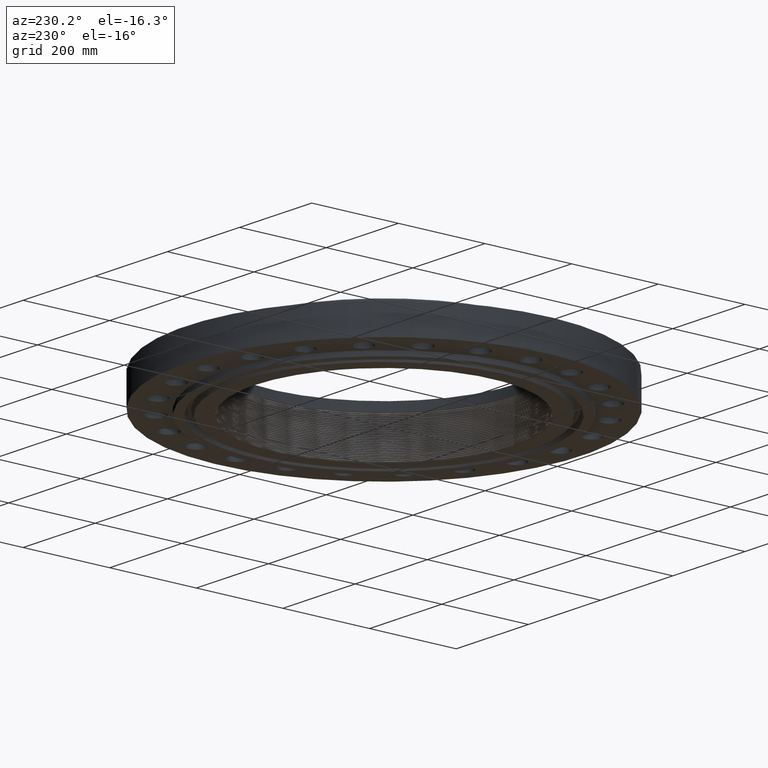
[diagram: clean part render]
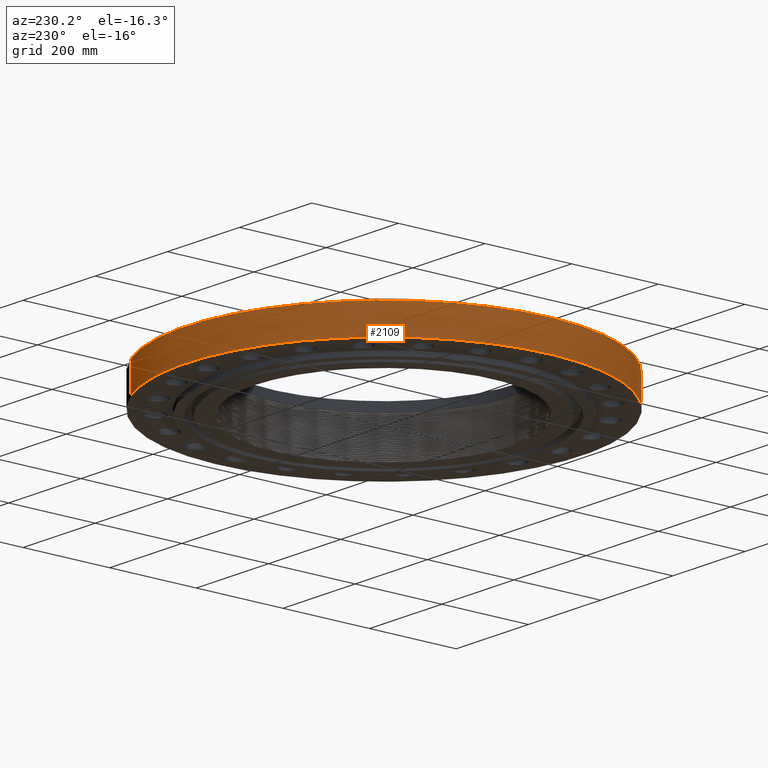
[diagram: same view with one face highlighted and labeled with its STEP entity id]
A machine part, auxiliary view. The second image highlights one B-rep face of the part: STEP entity #2109.
In plain terms, the highlighted cylindrical surface (partial cylindrical patch) has radius 457.2 mm, axis along (0, 0, -1).
Its self-contained STEP definition (entity closure, byte-faithful):
#1750=AXIS2_PLACEMENT_3D('Circle Axis2P3D',#1748,#1749,$) ;
#2070=AXIS2_PLACEMENT_3D('Cylinder Axis2P3D',#2067,#2068,#2069) ;
#2100=AXIS2_PLACEMENT_3D('Circle Axis2P3D',#2098,#2099,$) ;
#1748=CARTESIAN_POINT('Axis2P3D Location',(0.,0.,0.)) ;
#1752=CARTESIAN_POINT('Vertex',(-8.62965969491,-15.7964861141,1.1189649382E-015)) ;
#1754=CARTESIAN_POINT('Vertex',(8.62965969491,15.7964861141,1.1189649382E-015)) ;
#2067=CARTESIAN_POINT('Axis2P3D Location',(0.,0.,1.84625000001)) ;
#2072=CARTESIAN_POINT('Line Origine',(8.62965969491,15.7964861141,1.34500000001)) ;
#2076=CARTESIAN_POINT('Vertex',(8.62965969491,15.7964861141,2.69000000001)) ;
#2083=CARTESIAN_POINT('Vertex',(-8.62965969491,-15.7964861141,2.69000000001)) ;
#2086=CARTESIAN_POINT('Line Origine',(-8.62965969491,-15.7964861141,1.34500000001)) ;
#2098=CARTESIAN_POINT('Axis2P3D Location',(0.,0.,2.69000000001)) ;
#1749=DIRECTION('Axis2P3D Direction',(0.,0.,-0.0393700787402)) ;
#2068=DIRECTION('Axis2P3D Direction',(0.,0.,-0.0393700787402)) ;
#2069=DIRECTION('Axis2P3D XDirection',(-0.0188750212049,-0.0345504945626,0.)) ;
#2073=DIRECTION('Vector Direction',(0.,0.,-0.0393700787402)) ;
#2087=DIRECTION('Vector Direction',(0.,0.,-0.0393700787402)) ;
#2099=DIRECTION('Axis2P3D Direction',(0.,0.,-0.0393700787402)) ;
#2074=VECTOR('Line Direction',#2073,0.0393700787402) ;
#2088=VECTOR('Line Direction',#2087,0.0393700787402) ;
#2104=ORIENTED_EDGE('',*,*,#1756,.F.) ;
#2105=ORIENTED_EDGE('',*,*,#2090,.T.) ;
#2106=ORIENTED_EDGE('',*,*,#2102,.T.) ;
#2107=ORIENTED_EDGE('',*,*,#2078,.F.) ;
#2109=ADVANCED_FACE('PartBody',(#2108),#2071,.T.) ;
#1751=CIRCLE('generated circle',#1750,18.0000000001) ;
#2101=CIRCLE('generated circle',#2100,18.0000000001) ;
#2071=CYLINDRICAL_SURFACE('generated cylinder',#2070,18.0000000001) ;
#1756=EDGE_CURVE('',#1753,#1755,#1751,.T.) ;
#2078=EDGE_CURVE('',#1755,#2077,#2075,.F.) ;
#2090=EDGE_CURVE('',#1753,#2084,#2089,.F.) ;
#2102=EDGE_CURVE('',#2084,#2077,#2101,.T.) ;
#2103=EDGE_LOOP('',(#2104,#2105,#2106,#2107)) ;
#2108=FACE_OUTER_BOUND('',#2103,.T.) ;
#2075=LINE('Line',#2072,#2074) ;
#2089=LINE('Line',#2086,#2088) ;
#1753=VERTEX_POINT('',#1752) ;
#1755=VERTEX_POINT('',#1754) ;
#2077=VERTEX_POINT('',#2076) ;
#2084=VERTEX_POINT('',#2083) ;